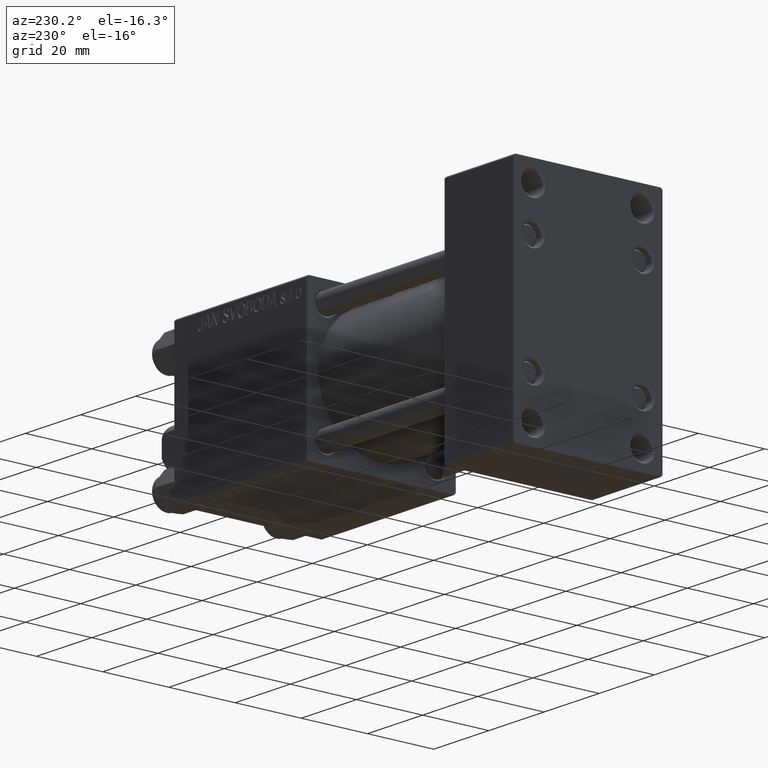
[diagram: clean part render]
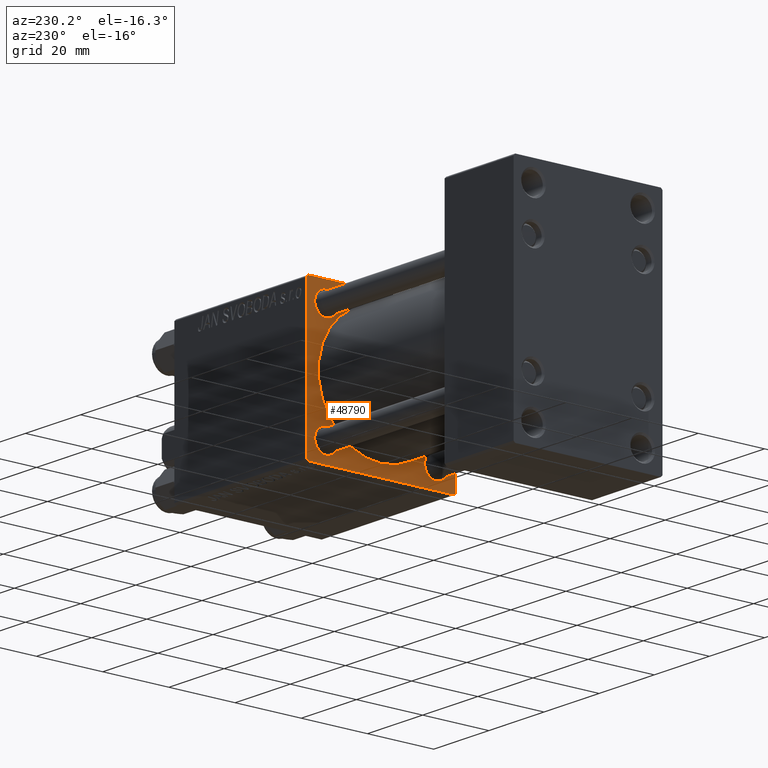
[diagram: same view with one face highlighted and labeled with its STEP entity id]
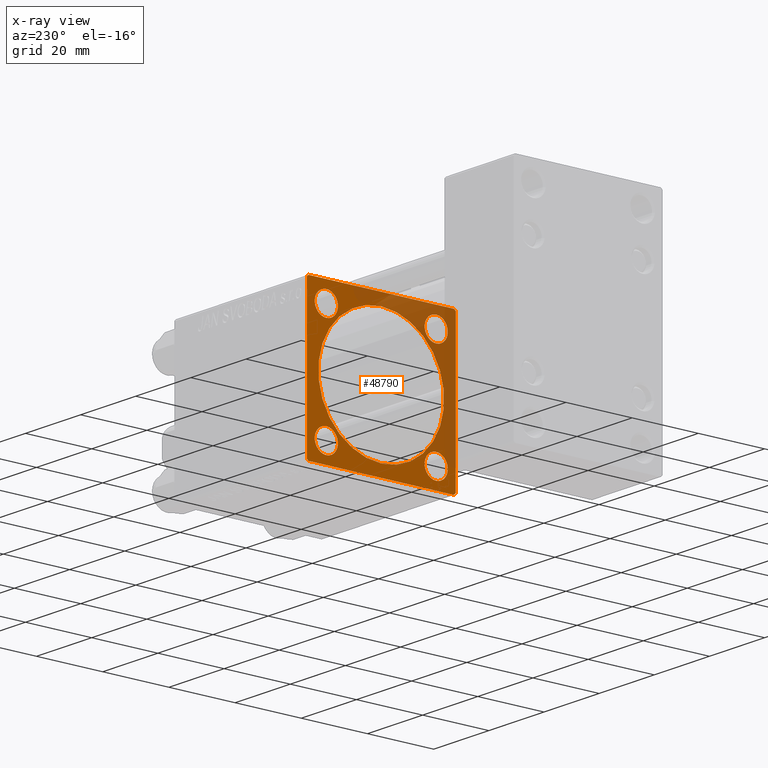
[diagram: x-ray of the same camera — body ghosted, the highlighted face saturated]
A machine part, auxiliary view. The second image highlights one B-rep face of the part: STEP entity #48790.
The next image is the same camera in x-ray: the body ghosted, the highlighted face saturated — about 39% of this face is hidden behind the body in this view.
In plain terms, the highlighted planar face has unit normal (-1, 0, 0).
Its self-contained STEP definition (entity closure, byte-faithful):
#209 = VERTEX_POINT ( 'NONE', #23964 ) ;
#245 = DIRECTION ( 'NONE',  ( 0.000000000000000000, 0.000000000000000000, 1.000000000000000000 ) ) ;
#343 = VERTEX_POINT ( 'NONE', #4171 ) ;
#434 = DIRECTION ( 'NONE',  ( 0.000000000000000000, -0.7071067811865425767, 0.7071067811865525687 ) ) ;
#450 = DIRECTION ( 'NONE',  ( -1.000000000000000000, 0.000000000000000000, -0.000000000000000000 ) ) ;
#540 = VERTEX_POINT ( 'NONE', #26327 ) ;
#646 = DIRECTION ( 'NONE',  ( 1.000000000000000000, -0.000000000000000000, 0.000000000000000000 ) ) ;
#929 = AXIS2_PLACEMENT_3D ( 'NONE', #3633, #46799, #42018 ) ;
#930 = VERTEX_POINT ( 'NONE', #47957 ) ;
#1168 = VERTEX_POINT ( 'NONE', #39817 ) ;
#2215 = AXIS2_PLACEMENT_3D ( 'NONE', #49473, #450, #30519 ) ;
#2418 = EDGE_CURVE ( 'NONE', #36862, #18985, #46971, .T. ) ;
#2643 = ORIENTED_EDGE ( 'NONE', *, *, #6533, .T. ) ;
#3091 = EDGE_CURVE ( 'NONE', #540, #34252, #12716, .T. ) ;
#3404 = AXIS2_PLACEMENT_3D ( 'NONE', #4880, #43759, #5628 ) ;
#3575 = LINE ( 'NONE', #46511, #49567 ) ;
#3633 = CARTESIAN_POINT ( 'NONE',  ( 75.00000000000001421, -2.602085213965210642E-15, 0.000000000000000000 ) ) ;
#3761 = CIRCLE ( 'NONE', #39236, 3.500000000000016875 ) ;
#4171 = CARTESIAN_POINT ( 'NONE',  ( 75.00000000000001421, 21.99999999999998934, -22.49999999999999645 ) ) ;
#4585 = CARTESIAN_POINT ( 'NONE',  ( 75.00000000000001421, -16.59999999999999076, 13.09999999999999076 ) ) ;
#4733 = EDGE_LOOP ( 'NONE', ( #37974, #39856 ) ) ;
#4880 = CARTESIAN_POINT ( 'NONE',  ( 75.00000000000001421, -16.59999999999999076, 16.60000000000000853 ) ) ;
#5261 = CARTESIAN_POINT ( 'NONE',  ( 75.00000000000001421, 16.59999999999999787, -20.10000000000001918 ) ) ;
#5387 = VECTOR ( 'NONE', #27518, 1000.000000000000000 ) ;
#5407 = CARTESIAN_POINT ( 'NONE',  ( 75.00000000000001421, -22.24999999999998579, 22.24999999999998579 ) ) ;
#5628 = DIRECTION ( 'NONE',  ( 0.000000000000000000, 0.000000000000000000, 1.000000000000000000 ) ) ;
#5811 = EDGE_CURVE ( 'NONE', #19988, #8921, #43118, .T. ) ;
#5892 = DIRECTION ( 'NONE',  ( -0.000000000000000000, 0.7071067811865474617, 0.7071067811865474617 ) ) ;
#6028 = LINE ( 'NONE', #17863, #22446 ) ;
#6093 = CIRCLE ( 'NONE', #12540, 3.500000000000016875 ) ;
#6533 = EDGE_CURVE ( 'NONE', #13532, #19867, #39850, .T. ) ;
#6916 = CARTESIAN_POINT ( 'NONE',  ( 75.00000000000001421, 22.50000000000000355, 22.50000000000000355 ) ) ;
#7616 = CARTESIAN_POINT ( 'NONE',  ( 75.00000000000001421, -2.602085213965210642E-15, 0.000000000000000000 ) ) ;
#7620 = EDGE_CURVE ( 'NONE', #540, #8921, #3575, .T. ) ;
#8105 = CARTESIAN_POINT ( 'NONE',  ( 75.00000000000001421, 22.50000000000000355, -22.49999999999999645 ) ) ;
#8495 = DIRECTION ( 'NONE',  ( 0.000000000000000000, 0.000000000000000000, 1.000000000000000000 ) ) ;
#8914 = DIRECTION ( 'NONE',  ( 0.000000000000000000, 0.000000000000000000, 1.000000000000000000 ) ) ;
#8921 = VERTEX_POINT ( 'NONE', #15201 ) ;
#10615 = ORIENTED_EDGE ( 'NONE', *, *, #46866, .T. ) ;
#11387 = DIRECTION ( 'NONE',  ( 1.000000000000000000, 0.000000000000000000, 0.000000000000000000 ) ) ;
#12540 = AXIS2_PLACEMENT_3D ( 'NONE', #23715, #19432, #245 ) ;
#12716 = LINE ( 'NONE', #5407, #15513 ) ;
#12948 = VERTEX_POINT ( 'NONE', #4585 ) ;
#13235 = DIRECTION ( 'NONE',  ( 0.000000000000000000, 0.000000000000000000, 1.000000000000000000 ) ) ;
#13399 = DIRECTION ( 'NONE',  ( 0.000000000000000000, 0.000000000000000000, 1.000000000000000000 ) ) ;
#13430 = AXIS2_PLACEMENT_3D ( 'NONE', #7616, #11387, #15664 ) ;
#13532 = VERTEX_POINT ( 'NONE', #36483 ) ;
#14646 = CARTESIAN_POINT ( 'NONE',  ( 75.00000000000001421, -22.25000000000015277, -22.24999999999984013 ) ) ;
#14788 = DIRECTION ( 'NONE',  ( 0.000000000000000000, 0.000000000000000000, 1.000000000000000000 ) ) ;
#15201 = CARTESIAN_POINT ( 'NONE',  ( 75.00000000000001421, -22.49999999999999645, -21.99999999999997868 ) ) ;
#15250 = DIRECTION ( 'NONE',  ( 0.000000000000000000, 0.000000000000000000, -1.000000000000000000 ) ) ;
#15253 = CARTESIAN_POINT ( 'NONE',  ( 75.00000000000001421, -16.59999999999999076, 20.10000000000002274 ) ) ;
#15513 = VECTOR ( 'NONE', #5892, 1000.000000000000114 ) ;
#15600 = FACE_OUTER_BOUND ( 'NONE', #46225, .T. ) ;
#15664 = DIRECTION ( 'NONE',  ( 0.000000000000000000, 0.000000000000000000, -1.000000000000000000 ) ) ;
#15710 = EDGE_CURVE ( 'NONE', #23395, #44228, #23088, .T. ) ;
#16082 = EDGE_CURVE ( 'NONE', #44228, #23395, #37575, .T. ) ;
#16698 = DIRECTION ( 'NONE',  ( 1.000000000000000000, -0.000000000000000000, 0.000000000000000000 ) ) ;
#17158 = CARTESIAN_POINT ( 'NONE',  ( 75.00000000000001421, -21.99999999999998224, -22.50000000000000000 ) ) ;
#17499 = CARTESIAN_POINT ( 'NONE',  ( 75.00000000000001421, -16.59999999999999076, -20.10000000000002274 ) ) ;
#17811 = ORIENTED_EDGE ( 'NONE', *, *, #43504, .T. ) ;
#17863 = CARTESIAN_POINT ( 'NONE',  ( 75.00000000000001421, 22.25000000000029843, 22.24999999999968381 ) ) ;
#17867 = AXIS2_PLACEMENT_3D ( 'NONE', #39530, #25083, #13235 ) ;
#18392 = CARTESIAN_POINT ( 'NONE',  ( 75.00000000000001421, -16.59999999999999076, 16.60000000000000853 ) ) ;
#18985 = VERTEX_POINT ( 'NONE', #20072 ) ;
#19110 = CIRCLE ( 'NONE', #13430, 19.00000000000000000 ) ;
#19432 = DIRECTION ( 'NONE',  ( 1.000000000000000000, -0.000000000000000000, 0.000000000000000000 ) ) ;
#19862 = ORIENTED_EDGE ( 'NONE', *, *, #3091, .T. ) ;
#19867 = VERTEX_POINT ( 'NONE', #25786 ) ;
#19988 = VERTEX_POINT ( 'NONE', #17158 ) ;
#20072 = CARTESIAN_POINT ( 'NONE',  ( 75.00000000000001421, 16.59999999999999787, -13.09999999999998721 ) ) ;
#21290 = DIRECTION ( 'NONE',  ( 0.000000000000000000, -1.000000000000000000, -2.312964634635742957E-16 ) ) ;
#21383 = ORIENTED_EDGE ( 'NONE', *, *, #5811, .T. ) ;
#21434 = AXIS2_PLACEMENT_3D ( 'NONE', #46632, #33985, #14788 ) ;
#21903 = DIRECTION ( 'NONE',  ( 0.000000000000000000, 0.7071067811865378028, -0.7071067811865573427 ) ) ;
#22446 = VECTOR ( 'NONE', #21903, 1000.000000000000000 ) ;
#23088 = CIRCLE ( 'NONE', #21434, 3.500000000000016875 ) ;
#23395 = VERTEX_POINT ( 'NONE', #36304 ) ;
#23509 = DIRECTION ( 'NONE',  ( 0.000000000000000000, 0.000000000000000000, -1.000000000000000000 ) ) ;
#23594 = ORIENTED_EDGE ( 'NONE', *, *, #46021, .T. ) ;
#23715 = CARTESIAN_POINT ( 'NONE',  ( 75.00000000000001421, 16.59999999999999787, -16.60000000000000497 ) ) ;
#23964 = CARTESIAN_POINT ( 'NONE',  ( 75.00000000000001421, 22.50000000000000355, 21.99999999999996092 ) ) ;
#24033 = CARTESIAN_POINT ( 'NONE',  ( 75.00000000000001421, 16.59999999999999787, 16.60000000000000497 ) ) ;
#24258 = EDGE_LOOP ( 'NONE', ( #10615, #26407 ) ) ;
#24520 = EDGE_CURVE ( 'NONE', #1168, #343, #40493, .T. ) ;
#25074 = VECTOR ( 'NONE', #21290, 1000.000000000000000 ) ;
#25083 = DIRECTION ( 'NONE',  ( 1.000000000000000000, -0.000000000000000000, 0.000000000000000000 ) ) ;
#25284 = AXIS2_PLACEMENT_3D ( 'NONE', #18392, #646, #8495 ) ;
#25368 = EDGE_CURVE ( 'NONE', #38395, #34252, #48836, .T. ) ;
#25552 = CARTESIAN_POINT ( 'NONE',  ( 75.00000000000001421, 21.99999999999997513, 22.50000000000000355 ) ) ;
#25786 = CARTESIAN_POINT ( 'NONE',  ( 75.00000000000001421, 16.59999999999999787, 20.10000000000001918 ) ) ;
#26220 = CARTESIAN_POINT ( 'NONE',  ( 75.00000000000001421, -2.752562955852396712E-16, -19.00000000000000000 ) ) ;
#26327 = CARTESIAN_POINT ( 'NONE',  ( 75.00000000000001421, -22.49999999999999645, 21.99999999999997868 ) ) ;
#26407 = ORIENTED_EDGE ( 'NONE', *, *, #30776, .T. ) ;
#26475 = CARTESIAN_POINT ( 'NONE',  ( 75.00000000000001421, -16.59999999999999076, -16.60000000000000853 ) ) ;
#26576 = VECTOR ( 'NONE', #33654, 1000.000000000000114 ) ;
#27518 = DIRECTION ( 'NONE',  ( 0.000000000000000000, -1.000000000000000000, -7.709882115452476934E-17 ) ) ;
#27575 = CIRCLE ( 'NONE', #3404, 3.500000000000016875 ) ;
#27928 = ORIENTED_EDGE ( 'NONE', *, *, #7620, .F. ) ;
#28080 = CARTESIAN_POINT ( 'NONE',  ( 75.00000000000001421, 16.59999999999999787, 16.60000000000000497 ) ) ;
#30003 = FACE_BOUND ( 'NONE', #46861, .T. ) ;
#30414 = LINE ( 'NONE', #42290, #43850 ) ;
#30519 = DIRECTION ( 'NONE',  ( -0.000000000000000000, 0.000000000000000000, 1.000000000000000000 ) ) ;
#30776 = EDGE_CURVE ( 'NONE', #35349, #930, #36410, .T. ) ;
#31649 = EDGE_CURVE ( 'NONE', #12948, #49666, #27575, .T. ) ;
#31749 = CIRCLE ( 'NONE', #25284, 3.500000000000016875 ) ;
#32745 = ORIENTED_EDGE ( 'NONE', *, *, #49598, .T. ) ;
#33549 = DIRECTION ( 'NONE',  ( 0.000000000000000000, 0.000000000000000000, 1.000000000000000000 ) ) ;
#33654 = DIRECTION ( 'NONE',  ( -0.000000000000000000, -0.7071067811865474617, -0.7071067811865474617 ) ) ;
#33985 = DIRECTION ( 'NONE',  ( 1.000000000000000000, -0.000000000000000000, 0.000000000000000000 ) ) ;
#34043 = FACE_BOUND ( 'NONE', #46837, .T. ) ;
#34252 = VERTEX_POINT ( 'NONE', #44120 ) ;
#34259 = ORIENTED_EDGE ( 'NONE', *, *, #35410, .T. ) ;
#34471 = ORIENTED_EDGE ( 'NONE', *, *, #45054, .T. ) ;
#34558 = FACE_BOUND ( 'NONE', #24258, .T. ) ;
#34852 = LINE ( 'NONE', #8105, #5387 ) ;
#35053 = ORIENTED_EDGE ( 'NONE', *, *, #31649, .T. ) ;
#35349 = VERTEX_POINT ( 'NONE', #26220 ) ;
#35410 = EDGE_CURVE ( 'NONE', #49666, #12948, #31749, .T. ) ;
#35679 = EDGE_CURVE ( 'NONE', #209, #1168, #30414, .T. ) ;
#35772 = VECTOR ( 'NONE', #434, 999.9999999999998863 ) ;
#36304 = CARTESIAN_POINT ( 'NONE',  ( 75.00000000000001421, -16.59999999999999076, -13.09999999999999076 ) ) ;
#36381 = ORIENTED_EDGE ( 'NONE', *, *, #35679, .T. ) ;
#36410 = CIRCLE ( 'NONE', #929, 19.00000000000000000 ) ;
#36483 = CARTESIAN_POINT ( 'NONE',  ( 75.00000000000001421, 16.59999999999999787, 13.09999999999998721 ) ) ;
#36630 = ORIENTED_EDGE ( 'NONE', *, *, #2418, .T. ) ;
#36862 = VERTEX_POINT ( 'NONE', #5261 ) ;
#37575 = CIRCLE ( 'NONE', #49706, 3.500000000000016875 ) ;
#37974 = ORIENTED_EDGE ( 'NONE', *, *, #15710, .T. ) ;
#38395 = VERTEX_POINT ( 'NONE', #25552 ) ;
#38653 = ORIENTED_EDGE ( 'NONE', *, *, #24520, .T. ) ;
#38850 = FACE_BOUND ( 'NONE', #4733, .T. ) ;
#39236 = AXIS2_PLACEMENT_3D ( 'NONE', #24033, #16698, #13399 ) ;
#39530 = CARTESIAN_POINT ( 'NONE',  ( 75.00000000000001421, 16.59999999999999787, -16.60000000000000497 ) ) ;
#39817 = CARTESIAN_POINT ( 'NONE',  ( 75.00000000000001421, 22.50000000000000355, -21.99999999999996803 ) ) ;
#39850 = CIRCLE ( 'NONE', #41438, 3.500000000000016875 ) ;
#39856 = ORIENTED_EDGE ( 'NONE', *, *, #16082, .T. ) ;
#40493 = LINE ( 'NONE', #45033, #26576 ) ;
#41438 = AXIS2_PLACEMENT_3D ( 'NONE', #28080, #43502, #8914 ) ;
#41902 = DIRECTION ( 'NONE',  ( 1.000000000000000000, -0.000000000000000000, 0.000000000000000000 ) ) ;
#42018 = DIRECTION ( 'NONE',  ( 0.000000000000000000, 0.000000000000000000, -1.000000000000000000 ) ) ;
#42290 = CARTESIAN_POINT ( 'NONE',  ( 75.00000000000001421, 22.50000000000000355, 22.50000000000000355 ) ) ;
#43118 = LINE ( 'NONE', #14646, #35772 ) ;
#43502 = DIRECTION ( 'NONE',  ( 1.000000000000000000, -0.000000000000000000, 0.000000000000000000 ) ) ;
#43504 = EDGE_CURVE ( 'NONE', #18985, #36862, #6093, .T. ) ;
#43759 = DIRECTION ( 'NONE',  ( 1.000000000000000000, -0.000000000000000000, 0.000000000000000000 ) ) ;
#43850 = VECTOR ( 'NONE', #15250, 1000.000000000000000 ) ;
#44120 = CARTESIAN_POINT ( 'NONE',  ( 75.00000000000001421, -21.99999999999996803, 22.49999999999999289 ) ) ;
#44228 = VERTEX_POINT ( 'NONE', #17499 ) ;
#45033 = CARTESIAN_POINT ( 'NONE',  ( 75.00000000000001421, 22.24999999999999289, -22.24999999999999289 ) ) ;
#45054 = EDGE_CURVE ( 'NONE', #19867, #13532, #3761, .T. ) ;
#45661 = EDGE_LOOP ( 'NONE', ( #34471, #2643 ) ) ;
#45685 = PLANE ( 'NONE',  #2215 ) ;
#46021 = EDGE_CURVE ( 'NONE', #343, #19988, #34852, .T. ) ;
#46191 = FACE_BOUND ( 'NONE', #45661, .T. ) ;
#46225 = EDGE_LOOP ( 'NONE', ( #23594, #21383, #27928, #19862, #49777, #32745, #36381, #38653 ) ) ;
#46511 = CARTESIAN_POINT ( 'NONE',  ( 75.00000000000001421, -22.49999999999999645, 22.49999999999999289 ) ) ;
#46632 = CARTESIAN_POINT ( 'NONE',  ( 75.00000000000001421, -16.59999999999999076, -16.60000000000000853 ) ) ;
#46799 = DIRECTION ( 'NONE',  ( 1.000000000000000000, 0.000000000000000000, 0.000000000000000000 ) ) ;
#46837 = EDGE_LOOP ( 'NONE', ( #17811, #36630 ) ) ;
#46861 = EDGE_LOOP ( 'NONE', ( #34259, #35053 ) ) ;
#46866 = EDGE_CURVE ( 'NONE', #930, #35349, #19110, .T. ) ;
#46971 = CIRCLE ( 'NONE', #17867, 3.500000000000016875 ) ;
#47957 = CARTESIAN_POINT ( 'NONE',  ( 75.00000000000001421, -2.602085213965210642E-15, 19.00000000000000000 ) ) ;
#48790 = ADVANCED_FACE ( 'NONE', ( #30003, #46191, #34043, #38850, #34558, #15600 ), #45685, .T. ) ;
#48836 = LINE ( 'NONE', #6916, #25074 ) ;
#49473 = CARTESIAN_POINT ( 'NONE',  ( 75.00000000000001421, 0.000000000000000000, 0.000000000000000000 ) ) ;
#49567 = VECTOR ( 'NONE', #23509, 1000.000000000000000 ) ;
#49598 = EDGE_CURVE ( 'NONE', #38395, #209, #6028, .T. ) ;
#49666 = VERTEX_POINT ( 'NONE', #15253 ) ;
#49706 = AXIS2_PLACEMENT_3D ( 'NONE', #26475, #41902, #33549 ) ;
#49777 = ORIENTED_EDGE ( 'NONE', *, *, #25368, .F. ) ;